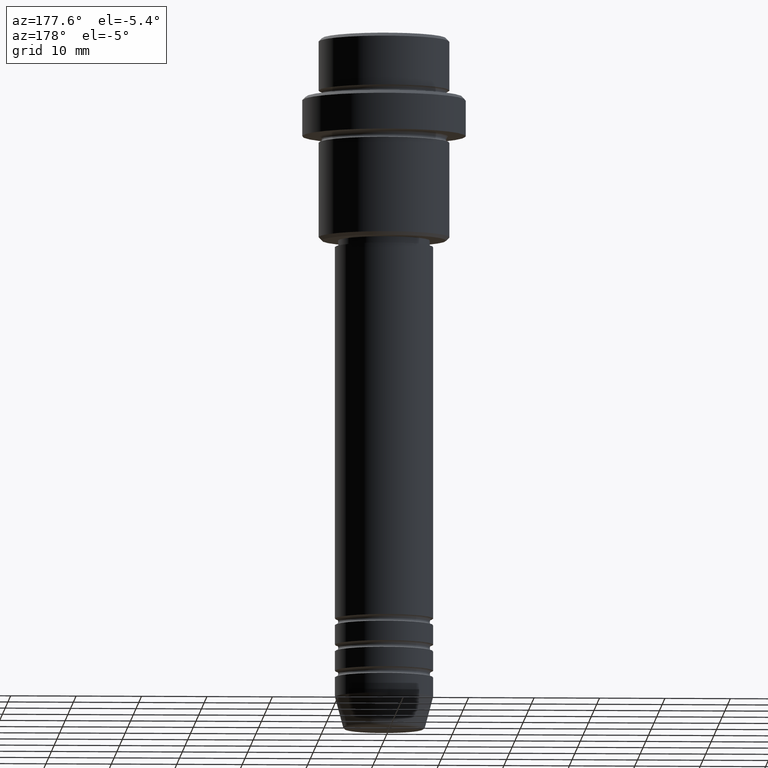
[diagram: clean part render]
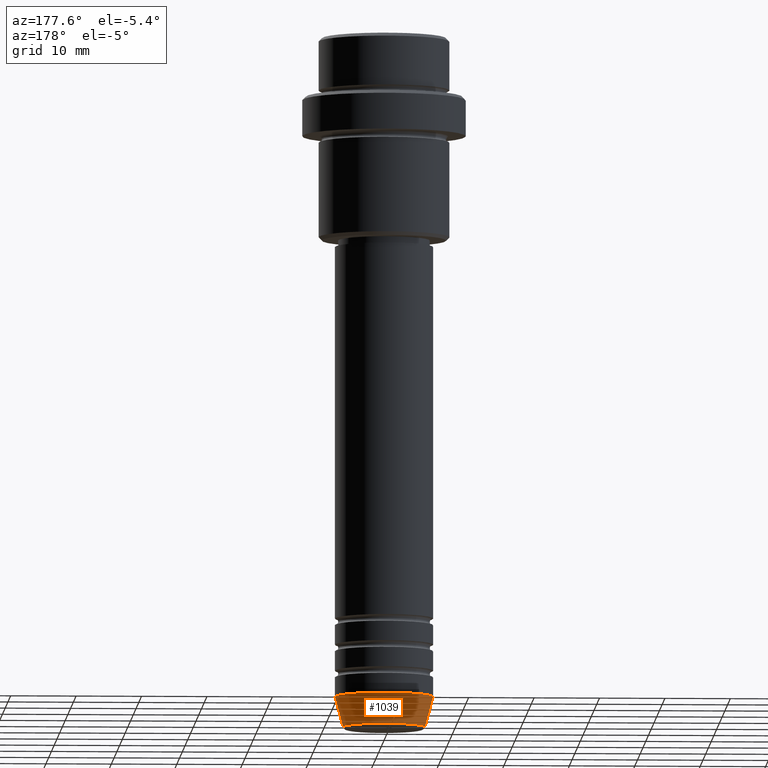
[diagram: same view with one face highlighted and labeled with its STEP entity id]
A machine part, auxiliary view. The second image highlights one B-rep face of the part: STEP entity #1039.
In plain terms, the highlighted conical surface has half-angle 15 deg.
Its self-contained STEP definition (entity closure, byte-faithful):
#31 = ORIENTED_EDGE ( 'NONE', *, *, #516, .F. ) ;
#127 = DIRECTION ( 'NONE',  ( 1.000000000000000000, 0.000000000000000000, 0.000000000000000000 ) ) ;
#193 = ORIENTED_EDGE ( 'NONE', *, *, #858, .F. ) ;
#199 = VERTEX_POINT ( 'NONE', #513 ) ;
#221 = CARTESIAN_POINT ( 'NONE',  ( -7.500000000000000000, 9.184850993605147944E-16, -101.0000000000000000 ) ) ;
#232 = CIRCLE ( 'NONE', #1343, 7.500000000000000000 ) ;
#280 = CARTESIAN_POINT ( 'NONE',  ( 0.000000000000000000, 0.000000000000000000, -101.0000000000000000 ) ) ;
#322 = VERTEX_POINT ( 'NONE', #648 ) ;
#343 = CARTESIAN_POINT ( 'NONE',  ( 6.259553456999443100, 0.000000000000000000, -105.6294095225512564 ) ) ;
#350 = DIRECTION ( 'NONE',  ( -0.000000000000000000, -0.000000000000000000, 1.000000000000000000 ) ) ;
#458 = CIRCLE ( 'NONE', #1040, 6.259553456999443100 ) ;
#513 = CARTESIAN_POINT ( 'NONE',  ( -6.259553456999443100, 8.425296549405632444E-16, -105.6294095225512564 ) ) ;
#516 = EDGE_CURVE ( 'NONE', #1044, #1167, #1202, .T. ) ;
#548 = VECTOR ( 'NONE', #663, 1000.000000000000000 ) ;
#550 = DIRECTION ( 'NONE',  ( -0.000000000000000000, -0.000000000000000000, 1.000000000000000000 ) ) ;
#567 = DIRECTION ( 'NONE',  ( 1.000000000000000000, 0.000000000000000000, 0.000000000000000000 ) ) ;
#614 = EDGE_LOOP ( 'NONE', ( #654, #1058, #193, #31 ) ) ;
#618 = AXIS2_PLACEMENT_3D ( 'NONE', #1231, #350, #567 ) ;
#648 = CARTESIAN_POINT ( 'NONE',  ( -7.500000000000000000, 9.184850993605147944E-16, -101.0000000000000000 ) ) ;
#654 = ORIENTED_EDGE ( 'NONE', *, *, #1083, .T. ) ;
#661 = CARTESIAN_POINT ( 'NONE',  ( 7.500000000000000000, 0.000000000000000000, -101.0000000000000000 ) ) ;
#663 = DIRECTION ( 'NONE',  ( -0.2588190451025213501, 3.169619151431772337E-17, 0.9659258262890680902 ) ) ;
#785 = LINE ( 'NONE', #221, #548 ) ;
#858 = EDGE_CURVE ( 'NONE', #1167, #322, #232, .T. ) ;
#912 = CONICAL_SURFACE ( 'NONE', #618, 7.500000000000000000, 0.2617993877991500740 ) ;
#923 = FACE_OUTER_BOUND ( 'NONE', #614, .T. ) ;
#952 = DIRECTION ( 'NONE',  ( -0.000000000000000000, -0.000000000000000000, 1.000000000000000000 ) ) ;
#985 = DIRECTION ( 'NONE',  ( 1.000000000000000000, 0.000000000000000000, 0.000000000000000000 ) ) ;
#1013 = CARTESIAN_POINT ( 'NONE',  ( 0.000000000000000000, 0.000000000000000000, -105.6294095225512564 ) ) ;
#1030 = CARTESIAN_POINT ( 'NONE',  ( 7.500000000000000000, 0.000000000000000000, -101.0000000000000000 ) ) ;
#1039 = ADVANCED_FACE ( 'NONE', ( #923 ), #912, .T. ) ;
#1040 = AXIS2_PLACEMENT_3D ( 'NONE', #1013, #550, #127 ) ;
#1044 = VERTEX_POINT ( 'NONE', #343 ) ;
#1058 = ORIENTED_EDGE ( 'NONE', *, *, #1079, .T. ) ;
#1079 = EDGE_CURVE ( 'NONE', #199, #322, #785, .T. ) ;
#1083 = EDGE_CURVE ( 'NONE', #1044, #199, #458, .T. ) ;
#1167 = VERTEX_POINT ( 'NONE', #1030 ) ;
#1202 = LINE ( 'NONE', #661, #1412 ) ;
#1231 = CARTESIAN_POINT ( 'NONE',  ( 0.000000000000000000, 0.000000000000000000, -101.0000000000000000 ) ) ;
#1246 = DIRECTION ( 'NONE',  ( 0.2588190451025213501, 0.000000000000000000, 0.9659258262890680902 ) ) ;
#1343 = AXIS2_PLACEMENT_3D ( 'NONE', #280, #952, #985 ) ;
#1412 = VECTOR ( 'NONE', #1246, 1000.000000000000000 ) ;